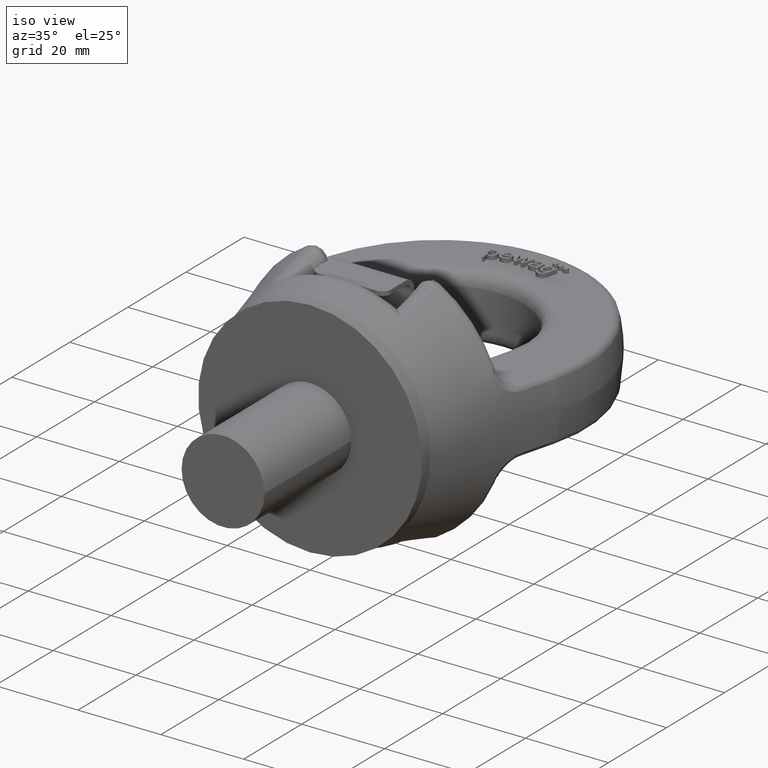
[diagram: clean part render]
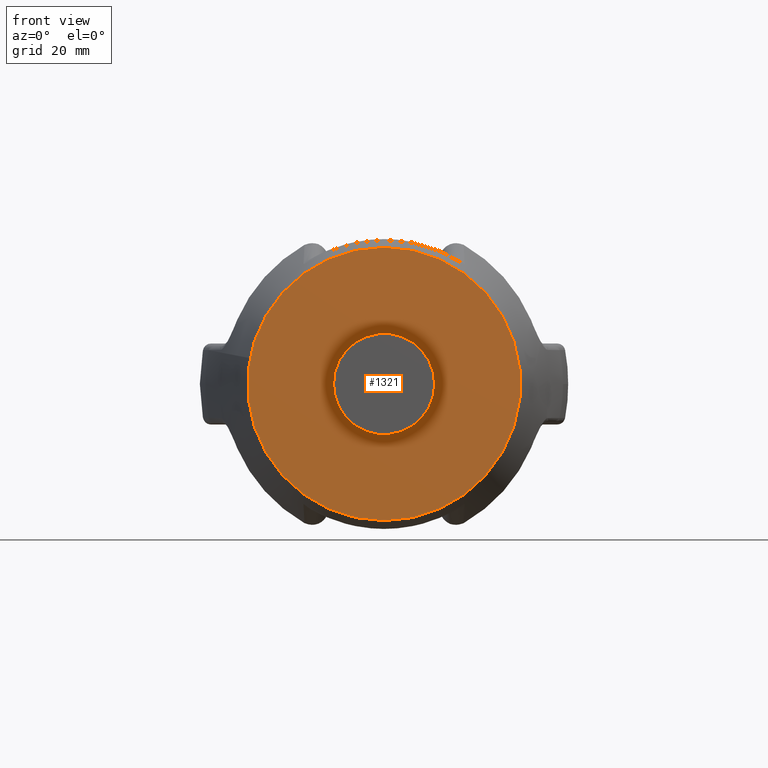
[diagram: tour spotlight — one face highlighted and labeled with its STEP entity id]
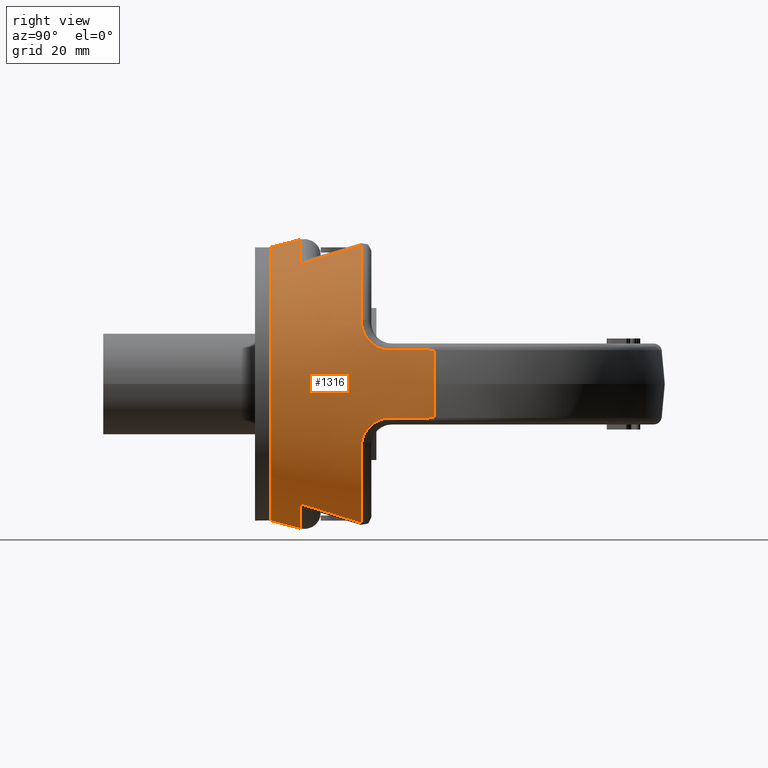
[diagram: tour spotlight — one face highlighted and labeled with its STEP entity id]
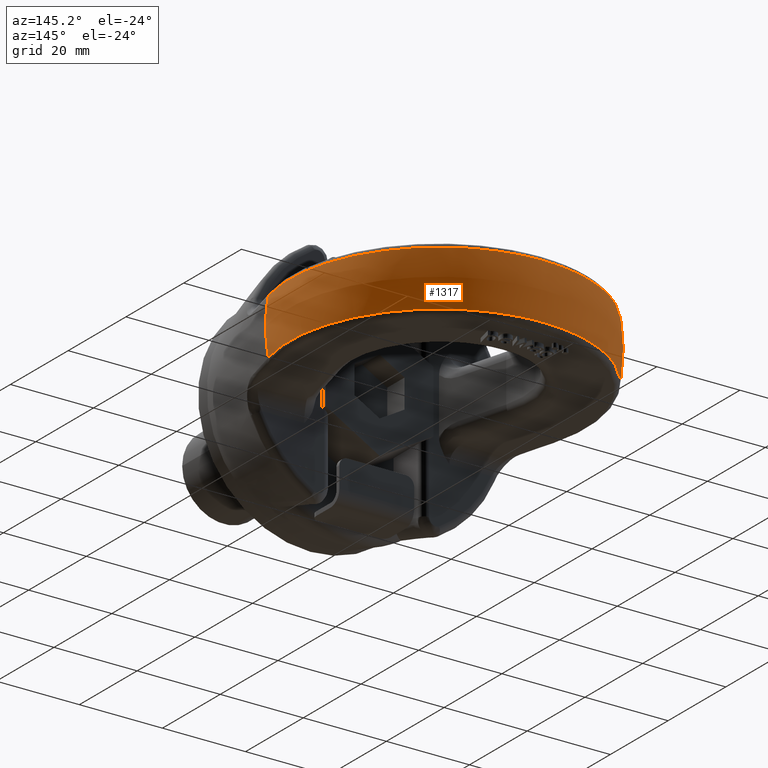
[diagram: tour spotlight — one face highlighted and labeled with its STEP entity id]
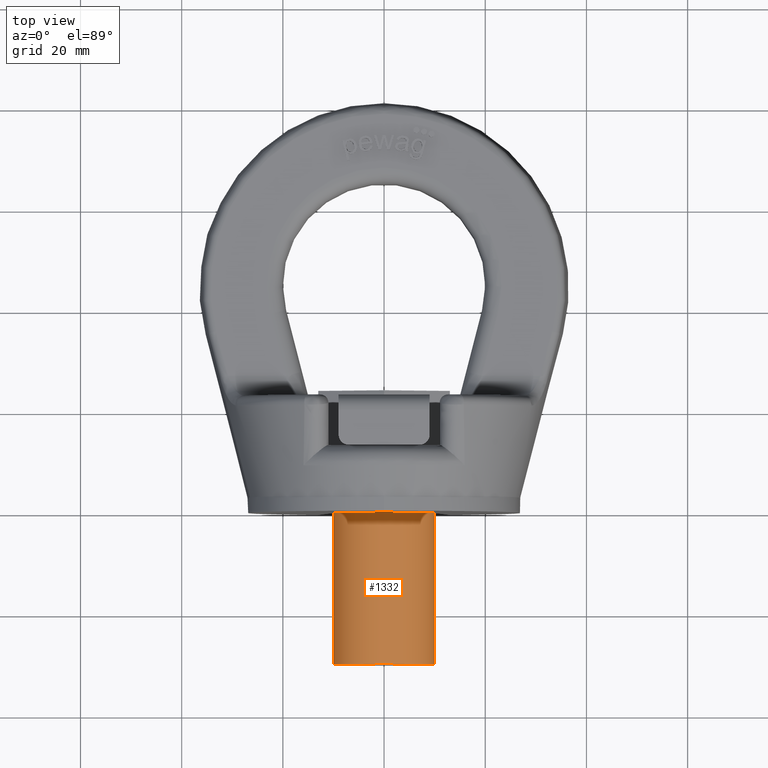
[diagram: tour spotlight — one face highlighted and labeled with its STEP entity id]
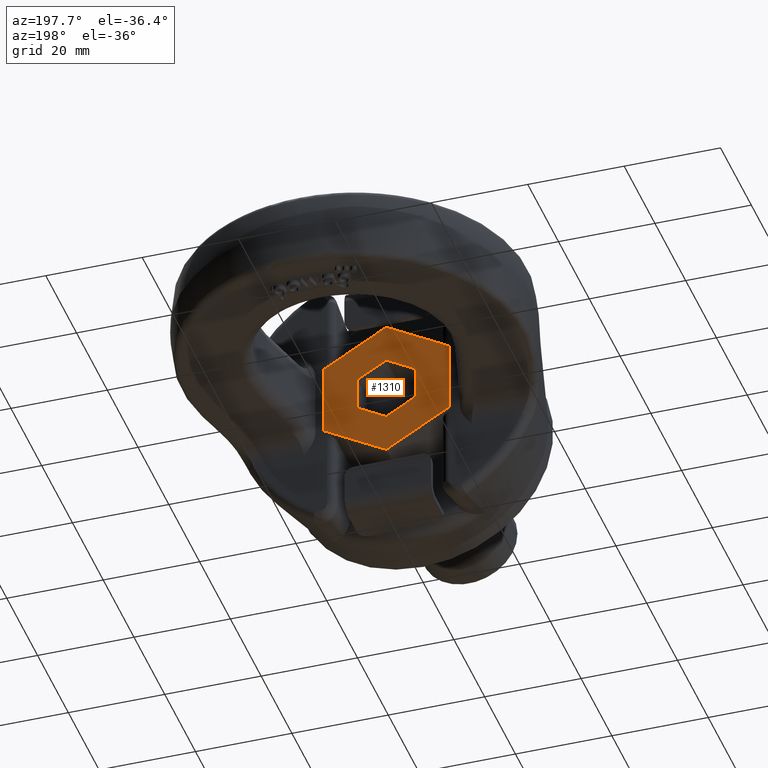
[diagram: tour spotlight — one face highlighted and labeled with its STEP entity id]
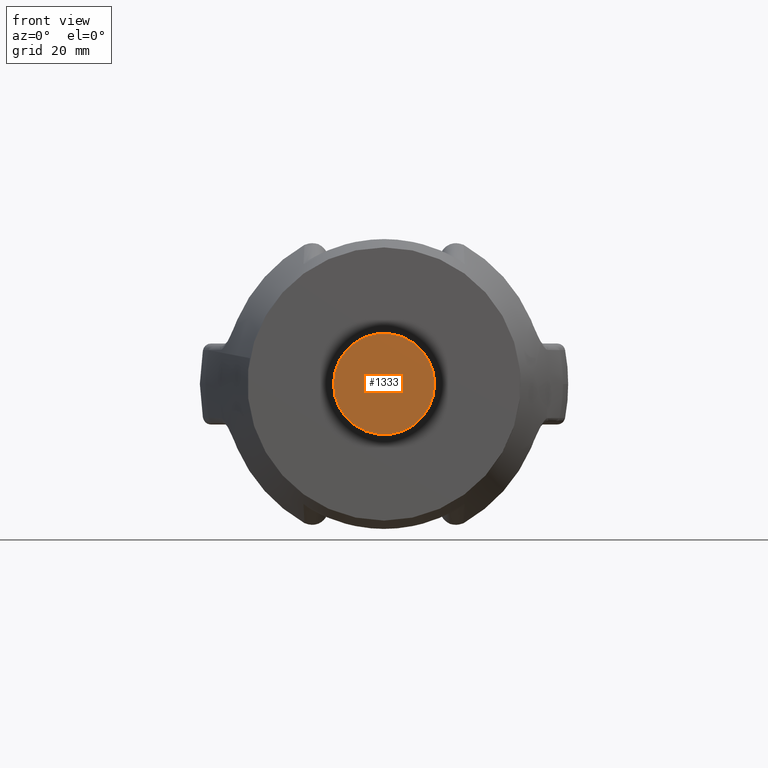
[diagram: tour spotlight — one face highlighted and labeled with its STEP entity id]
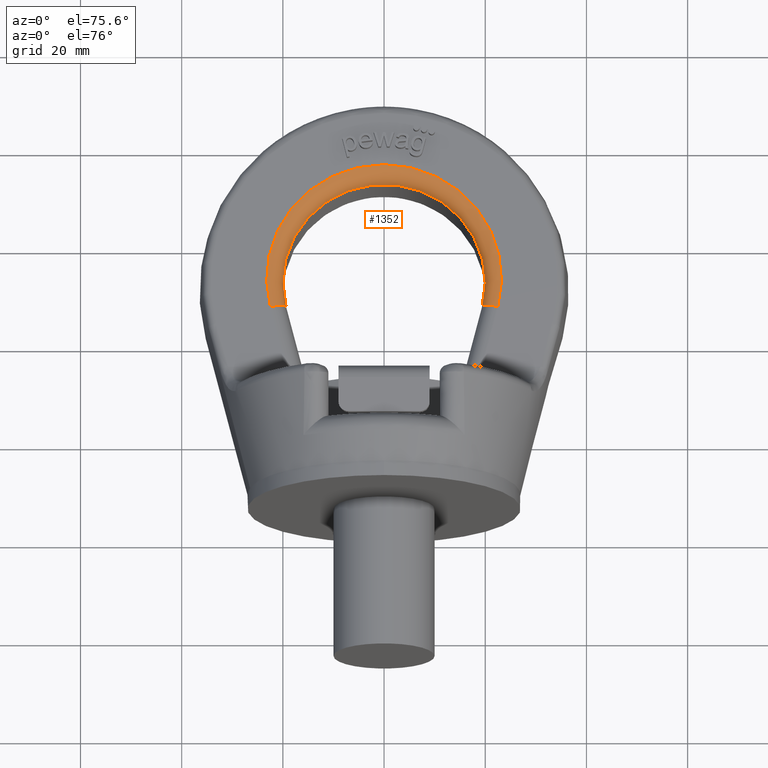
[diagram: tour spotlight — one face highlighted and labeled with its STEP entity id]
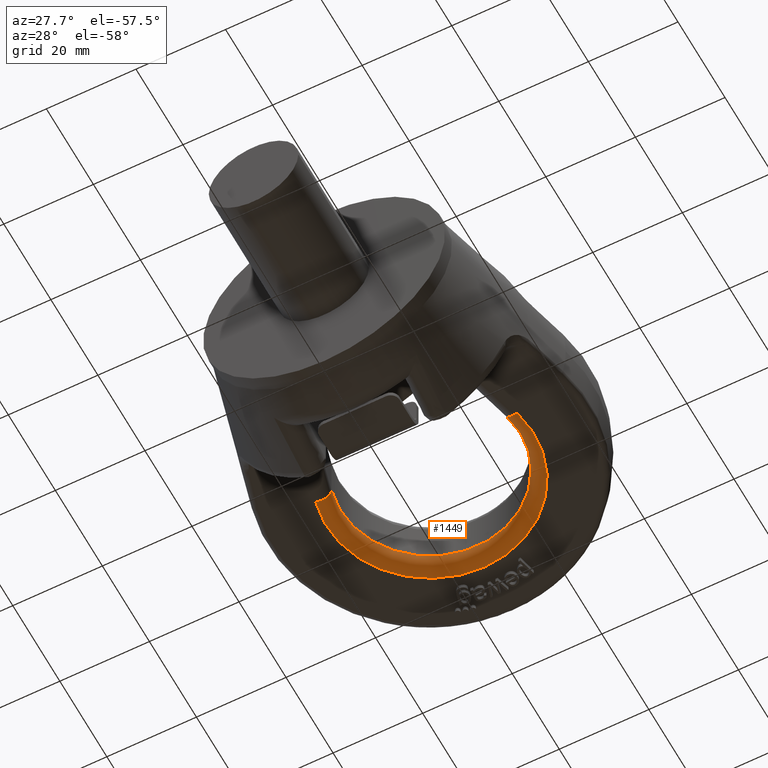
[diagram: tour spotlight — one face highlighted and labeled with its STEP entity id]
A machine part: a face-by-face anatomy tour. The part has 239 B-rep faces; the first image is the clean iso view, then the 8 largest visible faces are spotlighted one at a time (largest first), each with its STEP entity span.

Face 1 — front view, entity #1321. In plain terms, the highlighted planar face has unit normal (0, 1, 0).
Definition (entity closure, byte-faithful):
#1321=ADVANCED_FACE('',(#1769,#1770),#1557,.F.);
#1557=PLANE('',#5158);
#1689=CIRCLE('',#5156,27.0000000000001);
#1690=CIRCLE('',#5157,10.);
#1769=FACE_BOUND('',#1834,.T.);
#1770=FACE_BOUND('',#1835,.T.);
#1834=EDGE_LOOP('',(#2851));
#1835=EDGE_LOOP('',(#2852));
#2851=ORIENTED_EDGE('',*,*,#4407,.F.);
#2852=ORIENTED_EDGE('',*,*,#4408,.T.);
#4011=VERTEX_POINT('',#6885);
#4012=VERTEX_POINT('',#6887);
#4407=EDGE_CURVE('',#4011,#4011,#1689,.T.);
#4408=EDGE_CURVE('',#4012,#4012,#1690,.T.);
#5156=AXIS2_PLACEMENT_3D('',#6884,#5531,#5532);
#5157=AXIS2_PLACEMENT_3D('',#6886,#5533,#5534);
#5158=AXIS2_PLACEMENT_3D('',#6888,#5535,#5536);
#5531=DIRECTION('',(0.,1.,0.));
#5532=DIRECTION('',(0.,0.,1.));
#5533=DIRECTION('',(0.,1.,0.));
#5534=DIRECTION('',(1.,0.,6.12323399573677E-17));
#5535=DIRECTION('',(0.,1.,0.));
#5536=DIRECTION('',(0.,0.,1.));
#6884=CARTESIAN_POINT('',(-1.27403500852703E-13,0.,1.56599077210085E-14));
#6885=CARTESIAN_POINT('',(-1.27403500852703E-13,0.,27.0000000000001));
#6886=CARTESIAN_POINT('',(0.,0.,0.));
#6887=CARTESIAN_POINT('',(10.,0.,6.12323399573677E-16));
#6888=CARTESIAN_POINT('',(0.,0.,0.));

Face 2 — right view, entity #1316. In plain terms, the highlighted conical surface has half-angle 14.447 deg.
Definition (entity closure, byte-faithful):
#1090=CONICAL_SURFACE('',#5143,26.2270908160888,14.447293765675);
#1316=ADVANCED_FACE('',(#1767,#1768),#1090,.T.);
#1676=CIRCLE('',#5134,35.3457807433766);
#1677=CIRCLE('',#5135,31.6376656225695);
#1678=CIRCLE('',#5136,28.5462394060255);
#1679=CIRCLE('',#5137,31.6376656225695);
#1680=CIRCLE('',#5138,35.3457807433766);
#1681=CIRCLE('',#5139,31.6376656225695);
#1682=CIRCLE('',#5140,28.5462394060255);
#1683=CIRCLE('',#5141,31.6376656225695);
#1684=CIRCLE('',#5142,27.0000000000001);
#1767=FACE_BOUND('',#1828,.T.);
#1768=FACE_BOUND('',#1829,.T.);
#1828=EDGE_LOOP('',(#2810,#2811,#2812,#2813,#2814,#2815,#2816,#2817,#2818,
#2819,#2820,#2821,#2822,#2823,#2824,#2825,#2826,#2827,#2828,#2829));
#1829=EDGE_LOOP('',(#2830));
#2810=ORIENTED_EDGE('',*,*,#4372,.T.);
#2811=ORIENTED_EDGE('',*,*,#4373,.T.);
#2812=ORIENTED_EDGE('',*,*,#4374,.T.);
#2813=ORIENTED_EDGE('',*,*,#4375,.T.);
#2814=ORIENTED_EDGE('',*,*,#4376,.T.);
#2815=ORIENTED_EDGE('',*,*,#4377,.T.);
#2816=ORIENTED_EDGE('',*,*,#4378,.T.);
#2817=ORIENTED_EDGE('',*,*,#4379,.T.);
#2818=ORIENTED_EDGE('',*,*,#4380,.T.);
#2819=ORIENTED_EDGE('',*,*,#4381,.T.);
#2820=ORIENTED_EDGE('',*,*,#4382,.T.);
#2821=ORIENTED_EDGE('',*,*,#4383,.T.);
#2822=ORIENTED_EDGE('',*,*,#4384,.T.);
#2823=ORIENTED_EDGE('',*,*,#4385,.T.);
#2824=ORIENTED_EDGE('',*,*,#4386,.T.);
#2825=ORIENTED_EDGE('',*,*,#4387,.T.);
#2826=ORIENTED_EDGE('',*,*,#4388,.T.);
#2827=ORIENTED_EDGE('',*,*,#4389,.T.);
#2828=ORIENTED_EDGE('',*,*,#4390,.T.);
#2829=ORIENTED_EDGE('',*,*,#4391,.T.);
#2830=ORIENTED_EDGE('',*,*,#4392,.F.);
#3982=VERTEX_POINT('',#6748);
#3983=VERTEX_POINT('',#6749);
#3984=VERTEX_POINT('',#6757);
#3985=VERTEX_POINT('',#6764);
#3986=VERTEX_POINT('',#6766);
#3987=VERTEX_POINT('',#6774);
#3988=VERTEX_POINT('',#6776);
#3989=VERTEX_POINT('',#6784);
#3990=VERTEX_POINT('',#6786);
#3991=VERTEX_POINT('',#6793);
#3992=VERTEX_POINT('',#6801);
#3993=VERTEX_POINT('',#6803);
#3994=VERTEX_POINT('',#6811);
#3995=VERTEX_POINT('',#6818);
#3996=VERTEX_POINT('',#6820);
#3997=VERTEX_POINT('',#6828);
#3998=VERTEX_POINT('',#6830);
#3999=VERTEX_POINT('',#6838);
#4000=VERTEX_POINT('',#6840);
#4001=VERTEX_POINT('',#6847);
#4002=VERTEX_POINT('',#6856);
#4372=EDGE_CURVE('',#3982,#3983,#1676,.T.);
#4373=EDGE_CURVE('',#3983,#3984,#4887,.T.);
#4374=EDGE_CURVE('',#3984,#3985,#4888,.T.);
#4375=EDGE_CURVE('',#3985,#3986,#1677,.T.);
#4376=EDGE_CURVE('',#3986,#3987,#4889,.T.);
#4377=EDGE_CURVE('',#3987,#3988,#1678,.T.);
#4378=EDGE_CURVE('',#3988,#3989,#4890,.T.);
#4379=EDGE_CURVE('',#3989,#3990,#1679,.T.);
#4380=EDGE_CURVE('',#3990,#3991,#4891,.T.);
#4381=EDGE_CURVE('',#3991,#3992,#4892,.T.);
#4382=EDGE_CURVE('',#3992,#3993,#1680,.T.);
#4383=EDGE_CURVE('',#3993,#3994,#4893,.T.);
#4384=EDGE_CURVE('',#3994,#3995,#4894,.T.);
#4385=EDGE_CURVE('',#3995,#3996,#1681,.T.);
#4386=EDGE_CURVE('',#3996,#3997,#4895,.T.);
#4387=EDGE_CURVE('',#3997,#3998,#1682,.T.);
#4388=EDGE_CURVE('',#3998,#3999,#4896,.T.);
#4389=EDGE_CURVE('',#3999,#4000,#1683,.T.);
#4390=EDGE_CURVE('',#4000,#4001,#4897,.T.);
#4391=EDGE_CURVE('',#4001,#3982,#4898,.T.);
#4392=EDGE_CURVE('',#4002,#4002,#1684,.T.);
#4887=B_SPLINE_CURVE_WITH_KNOTS('',3,(#6750,#6751,#6752,#6753,#6754,#6755,
#6756),.UNSPECIFIED.,.F.,.F.,(4,3,4),(0.,0.351944575783635,1.),
 .UNSPECIFIED.);
#4888=B_SPLINE_CURVE_WITH_KNOTS('',3,(#6758,#6759,#6760,#6761,#6762,#6763),
 .UNSPECIFIED.,.F.,.F.,(4,2,4),(0.,0.5,1.),.UNSPECIFIED.);
#4889=B_SPLINE_CURVE_WITH_KNOTS('',3,(#6767,#6768,#6769,#6770,#6771,#6772,
#6773),.UNSPECIFIED.,.F.,.F.,(4,3,4),(0.,0.253307562725241,1.),
 .UNSPECIFIED.);
#4890=B_SPLINE_CURVE_WITH_KNOTS('',3,(#6777,#6778,#6779,#6780,#6781,#6782,
#6783),.UNSPECIFIED.,.F.,.F.,(4,3,4),(0.,0.746692437274741,1.),
 .UNSPECIFIED.);
#4891=B_SPLINE_CURVE_WITH_KNOTS('',3,(#6787,#6788,#6789,#6790,#6791,#6792),
 .UNSPECIFIED.,.F.,.F.,(4,2,4),(0.,0.5,1.),.UNSPECIFIED.);
#4892=B_SPLINE_CURVE_WITH_KNOTS('',3,(#6794,#6795,#6796,#6797,#6798,#6799,
#6800),.UNSPECIFIED.,.F.,.F.,(4,3,4),(0.,0.351944577876832,1.),
 .UNSPECIFIED.);
#4893=B_SPLINE_CURVE_WITH_KNOTS('',3,(#6804,#6805,#6806,#6807,#6808,#6809,
#6810),.UNSPECIFIED.,.F.,.F.,(4,3,4),(0.,0.351944575783635,1.),
 .UNSPECIFIED.);
#4894=B_SPLINE_CURVE_WITH_KNOTS('',3,(#6812,#6813,#6814,#6815,#6816,#6817),
 .UNSPECIFIED.,.F.,.F.,(4,2,4),(0.,0.5,1.),.UNSPECIFIED.);
#4895=B_SPLINE_CURVE_WITH_KNOTS('',3,(#6821,#6822,#6823,#6824,#6825,#6826,
#6827),.UNSPECIFIED.,.F.,.F.,(4,3,4),(0.,0.253307562725241,1.),
 .UNSPECIFIED.);
#4896=B_SPLINE_CURVE_WITH_KNOTS('',3,(#6831,#6832,#6833,#6834,#6835,#6836,
#6837),.UNSPECIFIED.,.F.,.F.,(4,3,4),(0.,0.746692437274741,1.),
 .UNSPECIFIED.);
#4897=B_SPLINE_CURVE_WITH_KNOTS('',3,(#6841,#6842,#6843,#6844,#6845,#6846),
 .UNSPECIFIED.,.F.,.F.,(4,2,4),(0.,0.5,1.),.UNSPECIFIED.);
#4898=B_SPLINE_CURVE_WITH_KNOTS('',3,(#6848,#6849,#6850,#6851,#6852,#6853,
#6854),.UNSPECIFIED.,.F.,.F.,(4,3,4),(0.,0.351944577876832,1.),
 .UNSPECIFIED.);
#5134=AXIS2_PLACEMENT_3D('',#6747,#5481,#5482);
#5135=AXIS2_PLACEMENT_3D('',#6765,#5483,#5484);
#5136=AXIS2_PLACEMENT_3D('',#6775,#5485,#5486);
#5137=AXIS2_PLACEMENT_3D('',#6785,#5487,#5488);
#5138=AXIS2_PLACEMENT_3D('',#6802,#5489,#5490);
#5139=AXIS2_PLACEMENT_3D('',#6819,#5491,#5492);
#5140=AXIS2_PLACEMENT_3D('',#6829,#5493,#5494);
#5141=AXIS2_PLACEMENT_3D('',#6839,#5495,#5496);
#5142=AXIS2_PLACEMENT_3D('',#6855,#5497,#5498);
#5143=AXIS2_PLACEMENT_3D('',#6857,#5499,#5500);
#5481=DIRECTION('',(-1.57288272657658E-15,-1.,0.));
#5482=DIRECTION('',(1.,-1.5705170479693E-15,0.));
#5483=DIRECTION('',(0.,-1.,0.));
#5484=DIRECTION('',(-2.34291072916505E-15,0.,1.));
#5485=DIRECTION('',(-2.36553201269565E-16,-1.,-5.54223033272802E-31));
#5486=DIRECTION('',(-1.,2.43075587127689E-16,-2.34291072916505E-15));
#5487=DIRECTION('',(0.,-1.,0.));
#5488=DIRECTION('',(-2.34291072916505E-15,0.,1.));
#5489=DIRECTION('',(-1.57288272657658E-15,-1.,0.));
#5490=DIRECTION('',(1.,-1.5705170479693E-15,0.));
#5491=DIRECTION('',(0.,-1.,0.));
#5492=DIRECTION('',(0.,0.,-1.));
#5493=DIRECTION('',(2.36553201269565E-16,-1.,0.));
#5494=DIRECTION('',(1.,2.43075587127689E-16,0.));
#5495=DIRECTION('',(0.,-1.,0.));
#5496=DIRECTION('',(0.,0.,-1.));
#5497=DIRECTION('',(0.,-1.,0.));
#5498=DIRECTION('',(0.,0.,1.));
#5499=DIRECTION('',(1.57288272657658E-15,1.,0.));
#5500=DIRECTION('',(-1.,1.41777955619788E-15,0.));
#6747=CARTESIAN_POINT('',(-7.173345510532E-14,35.3936404836426,0.));
#6748=CARTESIAN_POINT('',(-34.7062311751498,35.3936404836427,6.69340974212037));
#6749=CARTESIAN_POINT('',(-34.7062311751497,35.3936404836426,-6.69340974212043));
#6750=CARTESIAN_POINT('',(-34.7062311751497,35.3936404836426,-6.69340974212043));
#6751=CARTESIAN_POINT('',(-34.4351027808389,34.362009799662,-6.6957172109976));
#6752=CARTESIAN_POINT('',(-34.1638484917395,33.3304123130842,-6.69807901411032));
#6753=CARTESIAN_POINT('',(-33.8924582604372,32.298850737647,-6.70049917515936));
#6754=CARTESIAN_POINT('',(-33.3927321143865,30.3993782030849,-6.70495555425617));
#6755=CARTESIAN_POINT('',(-32.8925458843692,28.5000270810925,-6.70960948541693));
#6756=CARTESIAN_POINT('',(-32.3918267165812,26.6008171170912,-6.71448980966182));
#6757=CARTESIAN_POINT('',(-32.3918267165812,26.6008171170912,-6.71448980966182));
#6758=CARTESIAN_POINT('',(-32.3918267165812,26.6008171170912,-6.71448980966182));
#6759=CARTESIAN_POINT('',(-31.9771709777301,25.0280426728148,-6.71853130554571));
#6760=CARTESIAN_POINT('',(-31.4550528894279,23.5600809543293,-7.42972231636656));
#6761=CARTESIAN_POINT('',(-30.293428311036,21.5347764174963,-9.6693808104592));
#6762=CARTESIAN_POINT('',(-29.6595515248192,21.0008171170912,-11.1303386826544));
#6763=CARTESIAN_POINT('',(-29.0125728783075,21.0008171170912,-12.6179436132203));
#6764=CARTESIAN_POINT('',(-29.0125728783075,21.0008171170912,-12.6179436132203));
#6765=CARTESIAN_POINT('',(9.43716783652366E-14,21.0008171170912,2.21104417771226E-28));
#6766=CARTESIAN_POINT('',(-15.7418653729249,21.0008171170912,-27.443315408788));
#6767=CARTESIAN_POINT('',(-15.7418653729249,21.0008171170912,-27.443315408788));
#6768=CARTESIAN_POINT('',(-15.7559999337422,19.985351477366,-27.1336014044787));
#6769=CARTESIAN_POINT('',(-15.7705161644019,18.970372691692,-26.822302747061));
#6770=CARTESIAN_POINT('',(-15.785445715597,17.9559479728204,-26.5092330839176));
#6771=CARTESIAN_POINT('',(-15.829453966245,14.9657001945547,-25.5863889859365));
#6772=CARTESIAN_POINT('',(-15.8770326783705,11.9801002864094,-24.6483685762119));
#6773=CARTESIAN_POINT('',(-15.9291755573174,9.00163423418237,-23.6885869205042));
#6774=CARTESIAN_POINT('',(-15.9291755573174,9.00163423418237,-23.6885869205042));
#6775=CARTESIAN_POINT('',(1.13244985854797E-13,9.00163423418236,2.65322892383348E-28));
#6776=CARTESIAN_POINT('',(15.9291755573175,9.00163423418238,-23.6885869205043));
#6777=CARTESIAN_POINT('',(15.9291755573175,9.00163423418238,-23.6885869205043));
#6778=CARTESIAN_POINT('',(15.8770326783706,11.9801002864094,-24.6483685762119));
#6779=CARTESIAN_POINT('',(15.8294539662451,14.9657001945547,-25.5863889859365));
#6780=CARTESIAN_POINT('',(15.7854457155971,17.9559479728204,-26.5092330839176));
#6781=CARTESIAN_POINT('',(15.770516164402,18.970372691692,-26.822302747061));
#6782=CARTESIAN_POINT('',(15.7559999337423,19.9853514773661,-27.1336014044787));
#6783=CARTESIAN_POINT('',(15.741865372925,21.0008171170914,-27.4433154087881));
#6784=CARTESIAN_POINT('',(15.741865372925,21.0008171170914,-27.4433154087881));
#6785=CARTESIAN_POINT('',(9.43716783652366E-14,21.0008171170912,2.21104417771226E-28));
#6786=CARTESIAN_POINT('',(29.0125728783077,21.0008171170912,-12.6179436132202));
#6787=CARTESIAN_POINT('',(29.0125728783077,21.0008171170912,-12.6179436132202));
#6788=CARTESIAN_POINT('',(29.6590363856156,21.0008171170912,-11.1315231477422));
#6789=CARTESIAN_POINT('',(30.2998072188144,21.5451223364937,-9.65670714345623));
#6790=CARTESIAN_POINT('',(31.4511382396781,23.5540331569879,-7.43764559870446));
#6791=CARTESIAN_POINT('',(31.9775476746336,25.0294714707481,-6.71852763402039));
#6792=CARTESIAN_POINT('',(32.3918267165814,26.6008171170912,-6.71448980966167));
#6793=CARTESIAN_POINT('',(32.3918267165814,26.6008171170912,-6.71448980966167));
#6794=CARTESIAN_POINT('',(32.3918267165814,26.6008171170912,-6.71448980966167));
#6795=CARTESIAN_POINT('',(32.6637562370651,27.6322361000919,-6.71183941335752));
#6796=CARTESIAN_POINT('',(32.9355283240974,28.6636967743861,-6.70925587898849));
#6797=CARTESIAN_POINT('',(33.2071551754231,29.6951958305948,-6.70673439433334));
#6798=CARTESIAN_POINT('',(33.7073170210823,31.5945532366508,-6.70209144238376));
#6799=CARTESIAN_POINT('',(34.2069871646573,33.4940406968811,-6.69765861475958));
#6800=CARTESIAN_POINT('',(34.7062311751498,35.3936404836427,-6.69340974212029));
#6801=CARTESIAN_POINT('',(34.7062311751498,35.3936404836427,-6.69340974212029));
#6802=CARTESIAN_POINT('',(-7.173345510532E-14,35.3936404836426,0.));
#6803=CARTESIAN_POINT('',(34.7062311751497,35.3936404836426,6.69340974212035));
#6804=CARTESIAN_POINT('',(34.7062311751497,35.3936404836426,6.69340974212035));
#6805=CARTESIAN_POINT('',(34.435102780839,34.362009799662,6.69571721099751));
#6806=CARTESIAN_POINT('',(34.1638484917395,33.3304123130842,6.69807901411024));
#6807=CARTESIAN_POINT('',(33.8924582604372,32.298850737647,6.70049917515928));
#6808=CARTESIAN_POINT('',(33.3927321143865,30.3993782030849,6.70495555425609));
#6809=CARTESIAN_POINT('',(32.8925458843692,28.5000270810925,6.70960948541685));
#6810=CARTESIAN_POINT('',(32.3918267165812,26.6008171170912,6.71448980966175));
#6811=CARTESIAN_POINT('',(32.3918267165812,26.6008171170912,6.71448980966175));
#6812=CARTESIAN_POINT('',(32.3918267165812,26.6008171170912,6.71448980966175));
#6813=CARTESIAN_POINT('',(31.9771709777301,25.0280426728148,6.71853130554564));
#6814=CARTESIAN_POINT('',(31.455052889428,23.5600809543293,7.42972231636648));
#6815=CARTESIAN_POINT('',(30.2934283110361,21.5347764174963,9.66938081045913));
#6816=CARTESIAN_POINT('',(29.6595515248192,21.0008171170912,11.1303386826543));
#6817=CARTESIAN_POINT('',(29.0125728783075,21.0008171170912,12.6179436132203));
#6818=CARTESIAN_POINT('',(29.0125728783075,21.0008171170912,12.6179436132203));
#6819=CARTESIAN_POINT('',(-9.43716783652366E-14,21.0008171170912,0.));
#6820=CARTESIAN_POINT('',(15.741865372925,21.0008171170912,27.4433154087879));
#6821=CARTESIAN_POINT('',(15.741865372925,21.0008171170912,27.4433154087879));
#6822=CARTESIAN_POINT('',(15.7559999337423,19.985351477366,27.1336014044786));
#6823=CARTESIAN_POINT('',(15.770516164402,18.970372691692,26.8223027470609));
#6824=CARTESIAN_POINT('',(15.7854457155971,17.9559479728204,26.5092330839176));
#6825=CARTESIAN_POINT('',(15.829453966245,14.9657001945547,25.5863889859364));
#6826=CARTESIAN_POINT('',(15.8770326783705,11.9801002864094,24.6483685762118));
#6827=CARTESIAN_POINT('',(15.9291755573174,9.00163423418237,23.6885869205042));
#6828=CARTESIAN_POINT('',(15.9291755573174,9.00163423418237,23.6885869205042));
#6829=CARTESIAN_POINT('',(-1.13244985854797E-13,9.00163423418236,0.));
#6830=CARTESIAN_POINT('',(-15.9291755573174,9.00163423418238,23.6885869205043));
#6831=CARTESIAN_POINT('',(-15.9291755573174,9.00163423418238,23.6885869205043));
#6832=CARTESIAN_POINT('',(-15.8770326783705,11.9801002864094,24.648368576212));
#6833=CARTESIAN_POINT('',(-15.829453966245,14.9657001945547,25.5863889859365));
#6834=CARTESIAN_POINT('',(-15.785445715597,17.9559479728204,26.5092330839177));
#6835=CARTESIAN_POINT('',(-15.770516164402,18.970372691692,26.8223027470611));
#6836=CARTESIAN_POINT('',(-15.7559999337423,19.9853514773661,27.1336014044788));
#6837=CARTESIAN_POINT('',(-15.741865372925,21.0008171170914,27.4433154087881));
#6838=CARTESIAN_POINT('',(-15.741865372925,21.0008171170914,27.4433154087881));
#6839=CARTESIAN_POINT('',(-9.43716783652366E-14,21.0008171170912,0.));
#6840=CARTESIAN_POINT('',(-29.0125728783077,21.0008171170912,12.6179436132203));
#6841=CARTESIAN_POINT('',(-29.0125728783077,21.0008171170912,12.6179436132203));
#6842=CARTESIAN_POINT('',(-29.6590363856156,21.0008171170912,11.1315231477423));
#6843=CARTESIAN_POINT('',(-30.2998072188143,21.5451223364937,9.65670714345631));
#6844=CARTESIAN_POINT('',(-31.4511382396781,23.5540331569879,7.43764559870454));
#6845=CARTESIAN_POINT('',(-31.9775476746335,25.0294714707481,6.71852763402046));
#6846=CARTESIAN_POINT('',(-32.3918267165813,26.6008171170912,6.71448980966175));
#6847=CARTESIAN_POINT('',(-32.3918267165813,26.6008171170912,6.71448980966175));
#6848=CARTESIAN_POINT('',(-32.3918267165813,26.6008171170912,6.71448980966175));
#6849=CARTESIAN_POINT('',(-32.6637562370651,27.6322361000919,6.7118394133576));
#6850=CARTESIAN_POINT('',(-32.9355283240974,28.6636967743861,6.70925587898857));
#6851=CARTESIAN_POINT('',(-33.2071551754231,29.6951958305948,6.70673439433342));
#6852=CARTESIAN_POINT('',(-33.7073170210823,31.5945532366508,6.70209144238384));
#6853=CARTESIAN_POINT('',(-34.2069871646573,33.4940406968811,6.69765861475966));
#6854=CARTESIAN_POINT('',(-34.7062311751498,35.3936404836427,6.69340974212037));
#6855=CARTESIAN_POINT('',(-1.27403500852703E-13,2.99999999999999,1.56599077210085E-14));
#6856=CARTESIAN_POINT('',(-1.27403500852703E-13,2.99999999999999,27.0000000000001));
#6857=CARTESIAN_POINT('',(-1.27403500852703E-13,4.16333634234434E-14,0.));

Face 3 — auxiliary view, entity #1317. In plain terms, the highlighted spherical surface has radius 36.5 mm.
Definition (entity closure, byte-faithful):
#1089=SPHERICAL_SURFACE('',#5146,36.5);
#1096=FACE_OUTER_BOUND('',#1830,.T.);
#1317=ADVANCED_FACE('',(#1096),#1089,.T.);
#1676=CIRCLE('',#5134,35.3457807433766);
#1680=CIRCLE('',#5138,35.3457807433766);
#1685=CIRCLE('',#5144,35.8810293333968);
#1686=CIRCLE('',#5145,35.8810293333968);
#1830=EDGE_LOOP('',(#2831,#2832,#2833,#2834));
#2831=ORIENTED_EDGE('',*,*,#4372,.F.);
#2832=ORIENTED_EDGE('',*,*,#4393,.T.);
#2833=ORIENTED_EDGE('',*,*,#4382,.F.);
#2834=ORIENTED_EDGE('',*,*,#4394,.T.);
#3982=VERTEX_POINT('',#6748);
#3983=VERTEX_POINT('',#6749);
#3992=VERTEX_POINT('',#6801);
#3993=VERTEX_POINT('',#6803);
#4372=EDGE_CURVE('',#3982,#3983,#1676,.T.);
#4382=EDGE_CURVE('',#3992,#3993,#1680,.T.);
#4393=EDGE_CURVE('',#3982,#3993,#1685,.T.);
#4394=EDGE_CURVE('',#3992,#3983,#1686,.T.);
#5134=AXIS2_PLACEMENT_3D('',#6747,#5481,#5482);
#5138=AXIS2_PLACEMENT_3D('',#6802,#5489,#5490);
#5144=AXIS2_PLACEMENT_3D('',#6858,#5501,#5502);
#5145=AXIS2_PLACEMENT_3D('',#6859,#5503,#5504);
#5146=AXIS2_PLACEMENT_3D('',#6860,#5505,#5506);
#5481=DIRECTION('',(-1.57288272657658E-15,-1.,0.));
#5482=DIRECTION('',(1.,-1.5705170479693E-15,0.));
#5489=DIRECTION('',(-1.57288272657658E-15,-1.,0.));
#5490=DIRECTION('',(1.,-1.5705170479693E-15,0.));
#5501=DIRECTION('',(0.,-1.27553196763001E-16,-1.));
#5502=DIRECTION('',(0.,1.,-1.2086633997162E-16));
#5503=DIRECTION('',(-2.34291072916505E-15,-1.27553196763001E-16,1.));
#5504=DIRECTION('',(-2.57642099594236E-31,1.,1.2086633997162E-16));
#5505=DIRECTION('',(-1.51165038661921E-15,-1.,0.));
#5506=DIRECTION('',(1.,-1.52085345839063E-15,0.));
#6747=CARTESIAN_POINT('',(-7.173345510532E-14,35.3936404836426,0.));
#6748=CARTESIAN_POINT('',(-34.7062311751498,35.3936404836427,6.69340974212037));
#6749=CARTESIAN_POINT('',(-34.7062311751497,35.3936404836426,-6.69340974212043));
#6801=CARTESIAN_POINT('',(34.7062311751498,35.3936404836427,-6.69340974212029));
#6802=CARTESIAN_POINT('',(-7.173345510532E-14,35.3936404836426,0.));
#6803=CARTESIAN_POINT('',(34.7062311751497,35.3936404836426,6.69340974212035));
#6858=CARTESIAN_POINT('',(-1.38050658413677E-30,44.5,6.69340974212035));
#6859=CARTESIAN_POINT('',(1.56820614995116E-14,44.5,-6.69340974212035));
#6860=CARTESIAN_POINT('',(-1.38050658413677E-30,44.5,0.));

Face 4 — top view, entity #1332. In plain terms, the highlighted cylindrical surface (bore or boss wall) has radius 10 mm, axis along (0, 1, 0).
Definition (entity closure, byte-faithful):
#1058=CYLINDRICAL_SURFACE('',#5172,10.);
#1332=ADVANCED_FACE('',(#1773,#1774),#1058,.T.);
#1690=CIRCLE('',#5157,10.);
#1691=CIRCLE('',#5171,10.);
#1773=FACE_BOUND('',#1847,.T.);
#1774=FACE_BOUND('',#1848,.T.);
#1847=EDGE_LOOP('',(#2899));
#1848=EDGE_LOOP('',(#2900));
#2899=ORIENTED_EDGE('',*,*,#4427,.T.);
#2900=ORIENTED_EDGE('',*,*,#4408,.F.);
#4012=VERTEX_POINT('',#6887);
#4019=VERTEX_POINT('',#6924);
#4408=EDGE_CURVE('',#4012,#4012,#1690,.T.);
#4427=EDGE_CURVE('',#4019,#4019,#1691,.T.);
#5157=AXIS2_PLACEMENT_3D('',#6886,#5533,#5534);
#5171=AXIS2_PLACEMENT_3D('',#6923,#5577,#5578);
#5172=AXIS2_PLACEMENT_3D('',#6925,#5579,#5580);
#5533=DIRECTION('',(0.,1.,0.));
#5534=DIRECTION('',(1.,0.,6.12323399573677E-17));
#5577=DIRECTION('',(0.,1.,0.));
#5578=DIRECTION('',(1.,0.,6.12323399573677E-17));
#5579=DIRECTION('',(0.,1.,0.));
#5580=DIRECTION('',(0.,0.,1.));
#6886=CARTESIAN_POINT('',(0.,0.,0.));
#6887=CARTESIAN_POINT('',(10.,0.,6.12323399573677E-16));
#6923=CARTESIAN_POINT('',(0.,-30.,0.));
#6924=CARTESIAN_POINT('',(10.,-30.,6.12323399573677E-16));
#6925=CARTESIAN_POINT('',(0.,-30.,0.));

Face 5 — auxiliary view, entity #1310. In plain terms, the highlighted planar face has unit normal (0, -1, 0).
Definition (entity closure, byte-faithful):
#1310=ADVANCED_FACE('',(#1765,#1766),#1549,.F.);
#1549=PLANE('',#5123);
#1765=FACE_BOUND('',#1821,.T.);
#1766=FACE_BOUND('',#1822,.T.);
#1821=EDGE_LOOP('',(#2755,#2756,#2757,#2758,#2759,#2760));
#1822=EDGE_LOOP('',(#2761,#2762,#2763,#2764,#2765,#2766));
#2113=LINE('',#6529,#2393);
#2114=LINE('',#6532,#2394);
#2115=LINE('',#6534,#2395);
#2116=LINE('',#6536,#2396);
#2117=LINE('',#6538,#2397);
#2118=LINE('',#6540,#2398);
#2119=LINE('',#6541,#2399);
#2120=LINE('',#6544,#2400);
#2121=LINE('',#6546,#2401);
#2122=LINE('',#6548,#2402);
#2123=LINE('',#6550,#2403);
#2124=LINE('',#6552,#2404);
#2393=VECTOR('',#5423,1.);
#2394=VECTOR('',#5424,1.);
#2395=VECTOR('',#5425,1.);
#2396=VECTOR('',#5426,1.);
#2397=VECTOR('',#5427,1.);
#2398=VECTOR('',#5428,1.);
#2399=VECTOR('',#5429,1.);
#2400=VECTOR('',#5430,1.);
#2401=VECTOR('',#5431,1.);
#2402=VECTOR('',#5432,1.);
#2403=VECTOR('',#5433,1.);
#2404=VECTOR('',#5434,1.);
#2755=ORIENTED_EDGE('',*,*,#4319,.F.);
#2756=ORIENTED_EDGE('',*,*,#4320,.F.);
#2757=ORIENTED_EDGE('',*,*,#4321,.F.);
#2758=ORIENTED_EDGE('',*,*,#4322,.F.);
#2759=ORIENTED_EDGE('',*,*,#4323,.F.);
#2760=ORIENTED_EDGE('',*,*,#4324,.F.);
#2761=ORIENTED_EDGE('',*,*,#4325,.F.);
#2762=ORIENTED_EDGE('',*,*,#4326,.F.);
#2763=ORIENTED_EDGE('',*,*,#4327,.F.);
#2764=ORIENTED_EDGE('',*,*,#4328,.F.);
#2765=ORIENTED_EDGE('',*,*,#4329,.F.);
#2766=ORIENTED_EDGE('',*,*,#4330,.F.);
#3931=VERTEX_POINT('',#6530);
#3932=VERTEX_POINT('',#6531);
#3933=VERTEX_POINT('',#6533);
#3934=VERTEX_POINT('',#6535);
#3935=VERTEX_POINT('',#6537);
#3936=VERTEX_POINT('',#6539);
#3937=VERTEX_POINT('',#6542);
#3938=VERTEX_POINT('',#6543);
#3939=VERTEX_POINT('',#6545);
#3940=VERTEX_POINT('',#6547);
#3941=VERTEX_POINT('',#6549);
#3942=VERTEX_POINT('',#6551);
#4319=EDGE_CURVE('',#3931,#3932,#2113,.T.);
#4320=EDGE_CURVE('',#3933,#3931,#2114,.T.);
#4321=EDGE_CURVE('',#3934,#3933,#2115,.T.);
#4322=EDGE_CURVE('',#3935,#3934,#2116,.T.);
#4323=EDGE_CURVE('',#3936,#3935,#2117,.T.);
#4324=EDGE_CURVE('',#3932,#3936,#2118,.T.);
#4325=EDGE_CURVE('',#3937,#3938,#2119,.T.);
#4326=EDGE_CURVE('',#3939,#3937,#2120,.T.);
#4327=EDGE_CURVE('',#3940,#3939,#2121,.T.);
#4328=EDGE_CURVE('',#3941,#3940,#2122,.T.);
#4329=EDGE_CURVE('',#3942,#3941,#2123,.T.);
#4330=EDGE_CURVE('',#3938,#3942,#2124,.T.);
#5123=AXIS2_PLACEMENT_3D('',#6553,#5435,#5436);
#5423=DIRECTION('',(0.,0.,1.));
#5424=DIRECTION('',(0.86602540378444,0.,0.499999999999997));
#5425=DIRECTION('',(0.866025403784443,0.,-0.499999999999993));
#5426=DIRECTION('',(0.,0.,-1.));
#5427=DIRECTION('',(-0.866025403784441,0.,-0.499999999999995));
#5428=DIRECTION('',(-0.866025403784441,0.,0.499999999999995));
#5429=DIRECTION('',(-0.86602540378444,0.,-0.499999999999998));
#5430=DIRECTION('',(0.,0.,-1.));
#5431=DIRECTION('',(0.866025403784441,0.,-0.499999999999996));
#5432=DIRECTION('',(0.866025403784441,0.,0.499999999999996));
#5433=DIRECTION('',(0.,0.,1.));
#5434=DIRECTION('',(-0.866025403784442,0.,0.499999999999994));
#5435=DIRECTION('',(0.,-1.,0.));
#5436=DIRECTION('',(0.,0.,-1.));
#6529=CARTESIAN_POINT('',(13.,24.,-7.50555349946516));
#6530=CARTESIAN_POINT('',(13.,24.,-7.50555349946513));
#6531=CARTESIAN_POINT('',(13.,24.,7.50555349946516));
#6532=CARTESIAN_POINT('',(3.51696836444381E-14,24.,-15.0111069989302));
#6533=CARTESIAN_POINT('',(3.51696836444381E-14,24.,-15.0111069989302));
#6534=CARTESIAN_POINT('',(-13.,24.,-7.50555349946519));
#6535=CARTESIAN_POINT('',(-13.,24.,-7.50555349946519));
#6536=CARTESIAN_POINT('',(-13.,24.,7.50555349946516));
#6537=CARTESIAN_POINT('',(-13.,24.,7.50555349946516));
#6538=CARTESIAN_POINT('',(0.,24.,15.0111069989302));
#6539=CARTESIAN_POINT('',(0.,24.,15.0111069989302));
#6540=CARTESIAN_POINT('',(13.,24.,7.50555349946516));
#6541=CARTESIAN_POINT('',(1.62321616820483E-14,24.,-6.92820323027546));
#6542=CARTESIAN_POINT('',(6.00000000000001,24.,-3.46410161513773));
#6543=CARTESIAN_POINT('',(1.62321616820483E-14,24.,-6.92820323027546));
#6544=CARTESIAN_POINT('',(6.,24.,-3.46410161513774));
#6545=CARTESIAN_POINT('',(6.,24.,3.46410161513774));
#6546=CARTESIAN_POINT('',(6.,24.,3.46410161513774));
#6547=CARTESIAN_POINT('',(0.,24.,6.92820323027546));
#6548=CARTESIAN_POINT('',(0.,24.,6.92820323027546));
#6549=CARTESIAN_POINT('',(-6.,24.,3.46410161513774));
#6550=CARTESIAN_POINT('',(-6.,24.,3.46410161513775));
#6551=CARTESIAN_POINT('',(-5.99999999999999,24.,-3.46410161513776));
#6552=CARTESIAN_POINT('',(-5.99999999999999,24.,-3.46410161513776));
#6553=CARTESIAN_POINT('',(0.,24.,0.));

Face 6 — front view, entity #1333. In plain terms, the highlighted planar face has unit normal (0, 1, 0).
Definition (entity closure, byte-faithful):
#1109=FACE_OUTER_BOUND('',#1849,.T.);
#1333=ADVANCED_FACE('',(#1109),#1567,.F.);
#1567=PLANE('',#5173);
#1691=CIRCLE('',#5171,10.);
#1849=EDGE_LOOP('',(#2901));
#2901=ORIENTED_EDGE('',*,*,#4427,.F.);
#4019=VERTEX_POINT('',#6924);
#4427=EDGE_CURVE('',#4019,#4019,#1691,.T.);
#5171=AXIS2_PLACEMENT_3D('',#6923,#5577,#5578);
#5173=AXIS2_PLACEMENT_3D('',#6926,#5581,#5582);
#5577=DIRECTION('',(0.,1.,0.));
#5578=DIRECTION('',(1.,0.,6.12323399573677E-17));
#5581=DIRECTION('',(0.,1.,0.));
#5582=DIRECTION('',(0.,0.,1.));
#6923=CARTESIAN_POINT('',(0.,-30.,0.));
#6924=CARTESIAN_POINT('',(10.,-30.,6.12323399573677E-16));
#6926=CARTESIAN_POINT('',(0.,-30.,0.));

Face 7 — auxiliary view, entity #1352. In plain terms, the highlighted toroidal blend (fillet) surface has major radius 23.2 mm and minor (blend) radius 3.2 mm.
Definition (entity closure, byte-faithful):
#1018=TOROIDAL_SURFACE('',#5198,23.2,3.2);
#1128=FACE_OUTER_BOUND('',#1868,.T.);
#1352=ADVANCED_FACE('',(#1128),#1018,.T.);
#1669=CIRCLE('',#5120,23.2);
#1687=CIRCLE('',#5147,20.);
#1703=CIRCLE('',#5195,3.2);
#1704=CIRCLE('',#5197,3.2);
#1868=EDGE_LOOP('',(#2976,#2977,#2978,#2979));
#2976=ORIENTED_EDGE('',*,*,#4447,.F.);
#2977=ORIENTED_EDGE('',*,*,#4396,.F.);
#2978=ORIENTED_EDGE('',*,*,#4448,.T.);
#2979=ORIENTED_EDGE('',*,*,#4296,.F.);
#3908=VERTEX_POINT('',#6399);
#3909=VERTEX_POINT('',#6400);
#4004=VERTEX_POINT('',#6863);
#4005=VERTEX_POINT('',#6865);
#4296=EDGE_CURVE('',#3908,#3909,#1669,.T.);
#4396=EDGE_CURVE('',#4004,#4005,#1687,.T.);
#4447=EDGE_CURVE('',#4005,#3908,#1703,.T.);
#4448=EDGE_CURVE('',#4004,#3909,#1704,.T.);
#5120=AXIS2_PLACEMENT_3D('',#6398,#5406,#5407);
#5147=AXIS2_PLACEMENT_3D('',#6864,#5508,#5509);
#5195=AXIS2_PLACEMENT_3D('',#7183,#5625,#5626);
#5197=AXIS2_PLACEMENT_3D('',#7185,#5629,#5630);
#5198=AXIS2_PLACEMENT_3D('',#7186,#5631,#5632);
#5406=DIRECTION('',(0.,-1.27553196763001E-16,-1.));
#5407=DIRECTION('',(0.,1.,-1.4954512723938E-16));
#5508=DIRECTION('',(0.,1.27553196763001E-16,1.));
#5509=DIRECTION('',(0.,1.,-1.30104260698261E-16));
#5625=DIRECTION('',(0.249489301818013,-0.968377554613055,0.));
#5626=DIRECTION('',(-0.968377554613055,-0.249489301818013,0.));
#5629=DIRECTION('',(0.249489301818012,0.968377554613055,0.));
#5630=DIRECTION('',(0.968377554613055,-0.249489301818013,0.));
#5631=DIRECTION('',(0.,-1.27553196763001E-16,-1.));
#5632=DIRECTION('',(0.,1.,-1.31418445149758E-16));
#6398=CARTESIAN_POINT('',(0.,45.,8.00000000000001));
#6399=CARTESIAN_POINT('',(-22.4663592670229,39.2118481978221,8.00000000000001));
#6400=CARTESIAN_POINT('',(22.4663592670229,39.2118481978221,8.00000000000001));
#6863=CARTESIAN_POINT('',(19.3675510922611,40.0102139636398,4.80000000000001));
#6864=CARTESIAN_POINT('',(0.,45.,4.80000000000001));
#6865=CARTESIAN_POINT('',(-19.3675510922611,40.0102139636398,4.80000000000001));
#7183=CARTESIAN_POINT('',(-22.4663592670229,39.2118481978221,4.80000000000001));
#7185=CARTESIAN_POINT('',(22.4663592670229,39.2118481978221,4.80000000000001));
#7186=CARTESIAN_POINT('',(0.,45.,4.80000000000001));

Face 8 — auxiliary view, entity #1449. In plain terms, the highlighted toroidal blend (fillet) surface has major radius 23.2 mm and minor (blend) radius 3.2 mm.
Definition (entity closure, byte-faithful):
#1023=TOROIDAL_SURFACE('',#5284,23.2,3.2);
#1217=FACE_OUTER_BOUND('',#1980,.T.);
#1449=ADVANCED_FACE('',(#1217),#1023,.T.);
#1688=CIRCLE('',#5148,20.);
#1712=CIRCLE('',#5247,23.2);
#1726=CIRCLE('',#5281,3.2);
#1727=CIRCLE('',#5283,3.2);
#1980=EDGE_LOOP('',(#3437,#3438,#3439,#3440));
#3437=ORIENTED_EDGE('',*,*,#4659,.F.);
#3438=ORIENTED_EDGE('',*,*,#4398,.F.);
#3439=ORIENTED_EDGE('',*,*,#4660,.T.);
#3440=ORIENTED_EDGE('',*,*,#4600,.F.);
#4003=VERTEX_POINT('',#6862);
#4006=VERTEX_POINT('',#6867);
#4117=VERTEX_POINT('',#8216);
#4118=VERTEX_POINT('',#8217);
#4398=EDGE_CURVE('',#4006,#4003,#1688,.T.);
#4600=EDGE_CURVE('',#4117,#4118,#1712,.T.);
#4659=EDGE_CURVE('',#4003,#4117,#1726,.T.);
#4660=EDGE_CURVE('',#4006,#4118,#1727,.T.);
#5148=AXIS2_PLACEMENT_3D('',#6868,#5511,#5512);
#5247=AXIS2_PLACEMENT_3D('',#8215,#5828,#5829);
#5281=AXIS2_PLACEMENT_3D('',#8655,#5917,#5918);
#5283=AXIS2_PLACEMENT_3D('',#8657,#5921,#5922);
#5284=AXIS2_PLACEMENT_3D('',#8658,#5923,#5924);
#5511=DIRECTION('',(2.34291072916505E-15,1.27553196763001E-16,-1.));
#5512=DIRECTION('',(-3.08148791101958E-31,1.,1.30104260698261E-16));
#5828=DIRECTION('',(-2.34291072916505E-15,-1.27553196763001E-16,1.));
#5829=DIRECTION('',(-2.65645509570653E-31,1.,1.4954512723938E-16));
#5917=DIRECTION('',(-0.249489301818013,-0.968377554613055,-5.8453116204132E-16));
#5918=DIRECTION('',(0.968377554613055,-0.249489301818013,2.16840434497101E-15));
#5921=DIRECTION('',(-0.249489301818012,0.968377554613055,-5.84531162041318E-16));
#5922=DIRECTION('',(-0.968377554613055,-0.249489301818013,-2.16840434497101E-15));
#5923=DIRECTION('',(-2.34291072916505E-15,-1.27553196763001E-16,1.));
#5924=DIRECTION('',(-2.91807567331399E-31,1.,1.31418445149758E-16));
#6862=CARTESIAN_POINT('',(19.3675510922611,40.0102139636398,-4.79999999999996));
#6867=CARTESIAN_POINT('',(-19.3675510922611,40.0102139636398,-4.80000000000005));
#6868=CARTESIAN_POINT('',(1.12459714999922E-14,45.,-4.80000000000001));
#8215=CARTESIAN_POINT('',(1.87432858333204E-14,45.,-8.00000000000001));
#8216=CARTESIAN_POINT('',(22.4663592670229,39.2118481978221,-7.99999999999995));
#8217=CARTESIAN_POINT('',(-22.4663592670229,39.2118481978221,-8.00000000000006));
#8655=CARTESIAN_POINT('',(22.4663592670229,39.2118481978221,-4.79999999999995));
#8657=CARTESIAN_POINT('',(-22.4663592670229,39.2118481978221,-4.80000000000006));
#8658=CARTESIAN_POINT('',(1.12459714999922E-14,45.,-4.80000000000001));